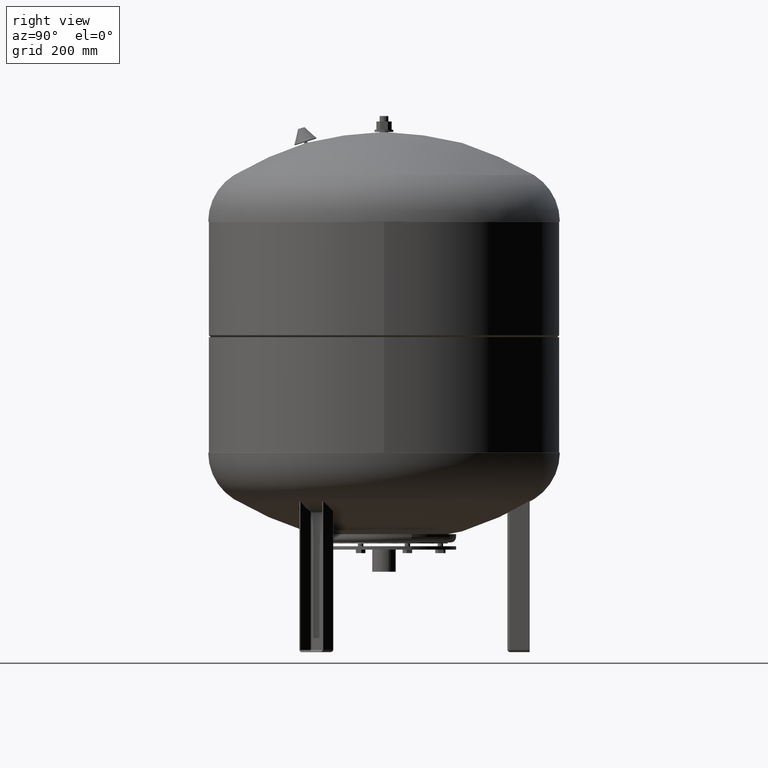
[diagram: clean part render]
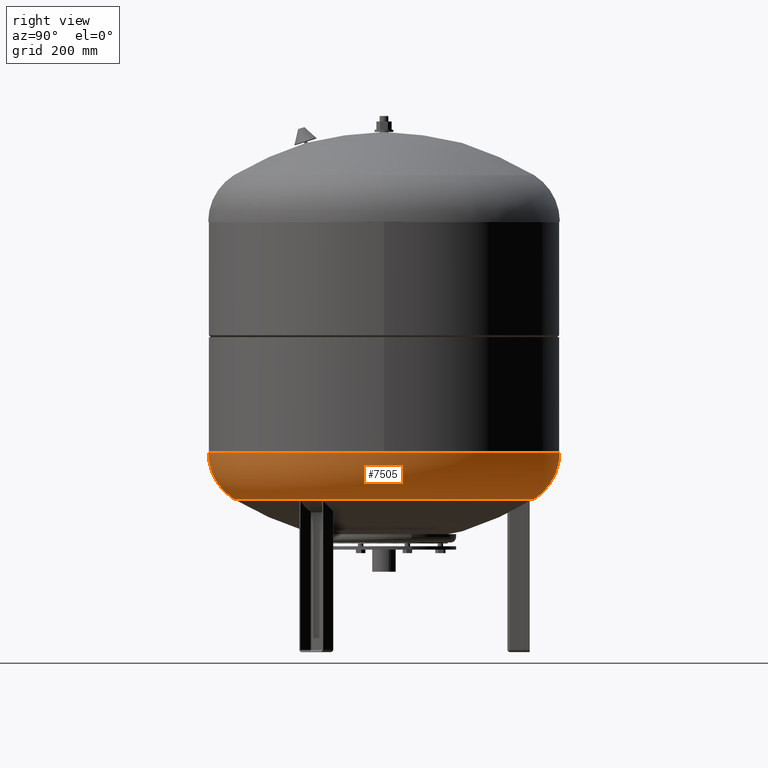
[diagram: same view with one face highlighted and labeled with its STEP entity id]
A machine part, right view. The second image highlights one B-rep face of the part: STEP entity #7505.
In plain terms, the highlighted toroidal blend (fillet) surface has major radius 218 mm and minor (blend) radius 99 mm.
Its self-contained STEP definition (entity closure, byte-faithful):
#7391=CARTESIAN_POINT('',(317.0,9.105293E-015,359.759449372628640));
#7392=VERTEX_POINT('',#7391);
#7399=CARTESIAN_POINT('',(-3.882002E-014,317.0,359.759449372628690));
#7400=VERTEX_POINT('',#7399);
#7401=CARTESIAN_POINT('',(-1.556097E-014,-2.971473E-014,359.759449372628640));
#7402=DIRECTION('',(0.0,0.0,1.0));
#7403=DIRECTION('',(-1.0,0.0,0.0));
#7404=AXIS2_PLACEMENT_3D('',#7401,#7402,#7403);
#7405=CIRCLE('',#7404,317.000000000000060);
#7406=EDGE_CURVE('',#7392,#7400,#7405,.T.);
#7423=CARTESIAN_POINT('',(-3.021869E-030,-317.000000000000110,359.759449372628580));
#7424=VERTEX_POINT('',#7423);
#7425=CARTESIAN_POINT('',(8.065826E-015,-270.639024390243830,275.913560318702370));
#7426=VERTEX_POINT('',#7425);
#7427=CARTESIAN_POINT('',(0.0,-218.000000000000030,359.759449372628580));
#7428=DIRECTION('',(1.0,0.0,0.0));
#7429=DIRECTION('',(0.0,-1.0,0.0));
#7430=AXIS2_PLACEMENT_3D('',#7427,#7428,#7429);
#7431=CIRCLE('',#7430,99.0);
#7432=EDGE_CURVE('',#7424,#7426,#7431,.T.);
#7442=CARTESIAN_POINT('',(-2.507680E-014,270.639024390243830,275.913560318702480));
#7443=VERTEX_POINT('',#7442);
#7444=CARTESIAN_POINT('',(-2.669642E-014,217.999999999999970,359.759449372628690));
#7445=DIRECTION('',(-1.0,0.0,0.0));
#7446=DIRECTION('',(0.0,1.0,0.0));
#7447=AXIS2_PLACEMENT_3D('',#7444,#7445,#7446);
#7448=CIRCLE('',#7447,99.0);
#7449=EDGE_CURVE('',#7400,#7443,#7448,.T.);
#7477=CARTESIAN_POINT('',(-7.495146E-015,-1.431249E-014,275.913560318702420));
#7478=DIRECTION('',(0.0,0.0,1.0));
#7479=DIRECTION('',(-1.0,0.0,0.0));
#7480=AXIS2_PLACEMENT_3D('',#7477,#7478,#7479);
#7481=CIRCLE('',#7480,270.639024390243830);
#7482=EDGE_CURVE('',#7426,#7443,#7481,.T.);
#7487=CARTESIAN_POINT('',(0.0,-2.971473E-014,359.759449372628640));
#7488=DIRECTION('',(-9.619823E-017,-1.836970E-016,1.0));
#7489=DIRECTION('',(0.0,-1.0,0.0));
#7490=AXIS2_PLACEMENT_3D('',#7487,#7488,#7489);
#7491=TOROIDAL_SURFACE('',#7490,218.0,99.0);
#7492=ORIENTED_EDGE('',*,*,#7432,.T.);
#7493=ORIENTED_EDGE('',*,*,#7482,.T.);
#7494=ORIENTED_EDGE('',*,*,#7449,.F.);
#7495=ORIENTED_EDGE('',*,*,#7406,.F.);
#7496=CARTESIAN_POINT('',(-1.556097E-014,-2.971473E-014,359.759449372628640));
#7497=DIRECTION('',(0.0,0.0,1.0));
#7498=DIRECTION('',(-1.0,0.0,0.0));
#7499=AXIS2_PLACEMENT_3D('',#7496,#7497,#7498);
#7500=CIRCLE('',#7499,317.000000000000060);
#7501=EDGE_CURVE('',#7424,#7392,#7500,.T.);
#7502=ORIENTED_EDGE('',*,*,#7501,.F.);
#7503=EDGE_LOOP('',(#7492,#7493,#7494,#7495,#7502));
#7504=FACE_OUTER_BOUND('',#7503,.T.);
#7505=ADVANCED_FACE('',(#7504),#7491,.T.);